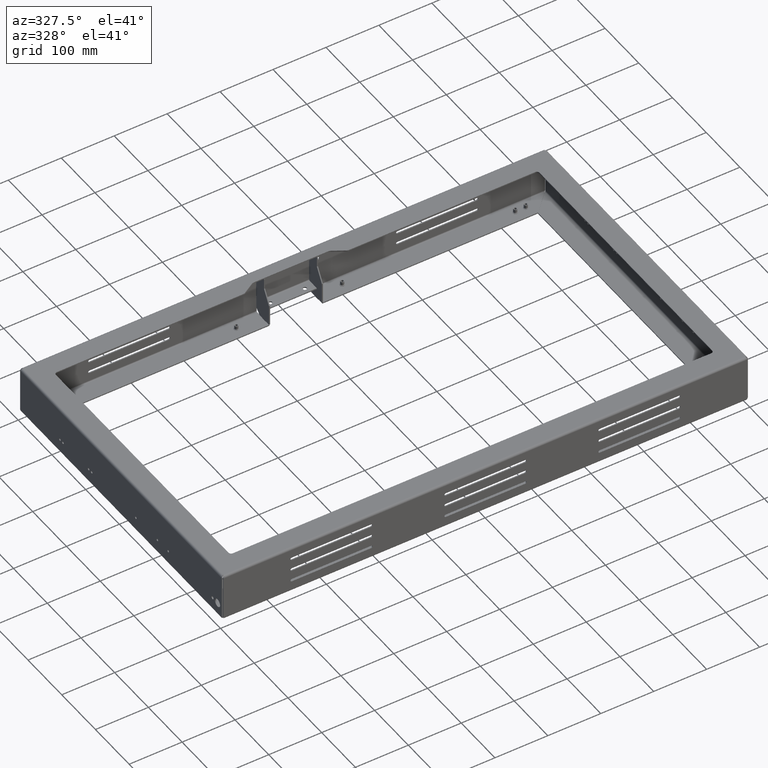
[diagram: clean part render]
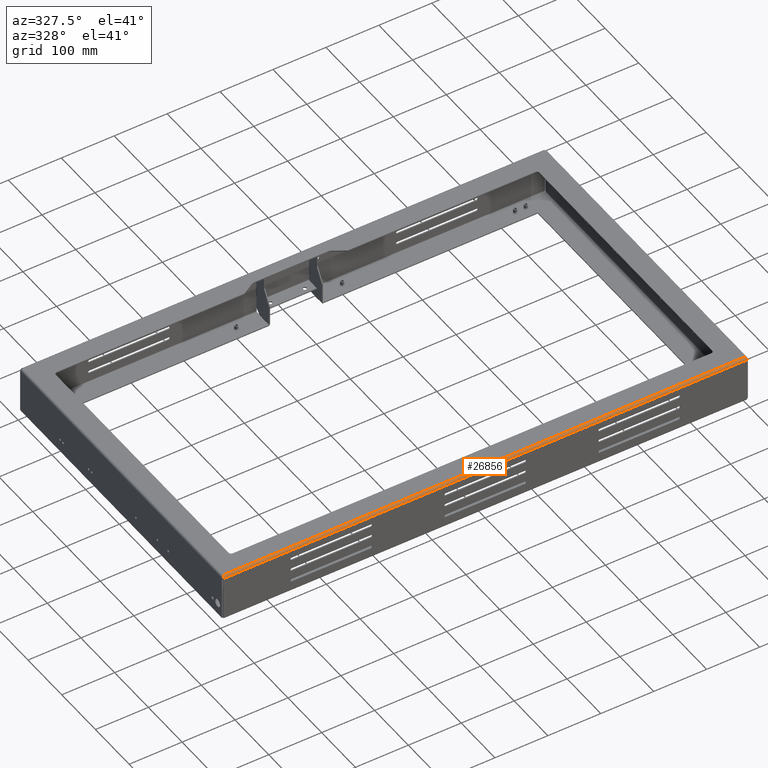
[diagram: same view with one face highlighted and labeled with its STEP entity id]
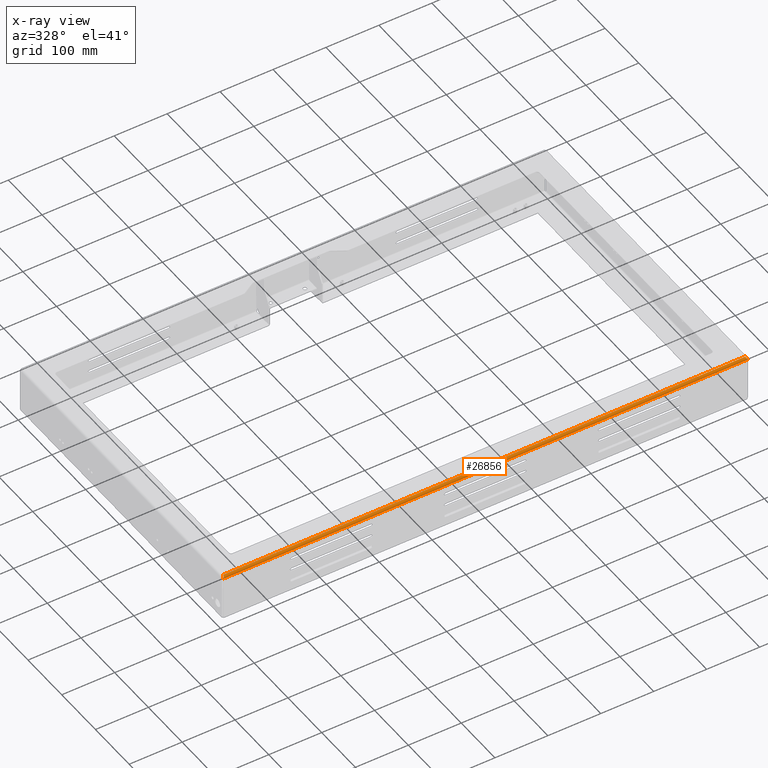
[diagram: x-ray of the same camera — body ghosted, the highlighted face saturated]
A machine part, auxiliary view. The second image highlights one B-rep face of the part: STEP entity #26856.
The next image is the same camera in x-ray: the body ghosted, the highlighted face saturated — about 0% of this face is hidden behind the body in this view.
In plain terms, the highlighted cylindrical surface (edge-blend (fillet) strip) has radius 4 mm, axis along (-1, 0, 0).
Its self-contained STEP definition (entity closure, byte-faithful):
#1115 = CARTESIAN_POINT ( 'NONE',  ( 494.3660906854802900, -300.5945629502260200, -2.225989450155605900 ) ) ;
#1271 = CARTESIAN_POINT ( 'NONE',  ( 493.0810958282489200, -297.2641076746487000, 1.088416161398094300E-014 ) ) ;
#1438 = CARTESIAN_POINT ( 'NONE',  ( 493.0000000000002300, -297.0000000000001100, -9.540979117872439000E-015 ) ) ;
#2223 = VECTOR ( 'NONE', #30024, 1000.000000000000000 ) ;
#2462 = CARTESIAN_POINT ( 'NONE',  ( -493.6445103622626800, -299.0085760043104400, -0.5309928944932697000 ) ) ;
#2723 = CARTESIAN_POINT ( 'NONE',  ( -494.9292893218816400, -301.0000000000000000, -4.000000000000051500 ) ) ;
#3326 = LINE ( 'NONE', #15771, #2223 ) ;
#3567 = EDGE_CURVE ( 'NONE', #39957, #37675, #14034, .T. ) ;
#4614 = CARTESIAN_POINT ( 'NONE',  ( 493.8840080356245600, -299.6426804497332300, -0.9859300766695997500 ) ) ;
#5157 = B_SPLINE_CURVE_WITH_KNOTS ( 'NONE', 3,
 ( #17979, #28556, #10208, #34660, #6693, #45099, #23671, #27170, #6246, #30732, #13280, #2462, #33929, #9450, #27029, #26886, #30412, #12963 ),
 .UNSPECIFIED., .F., .F.,
 ( 4, 2, 2, 2, 2, 2, 2, 2, 4 ),
 ( 4.076600168545496700E-017, 0.0008170730602800142400, 0.001634146120559987700, 0.002451219180839961200, 0.003268292241119934700, 0.004085365301399908200, 0.004902438361679881600, 0.005719511421959855100, 0.006536584482239828600 ),
 .UNSPECIFIED. ) ;
#6246 = CARTESIAN_POINT ( 'NONE',  ( -494.0452812862573600, -300.0140699233305100, -1.357319550266879100 ) ) ;
#6693 = CARTESIAN_POINT ( 'NONE',  ( -494.5276505241573100, -300.7960639522027000, -2.712033523026363000 ) ) ;
#7655 = CARTESIAN_POINT ( 'NONE',  ( -493.0000000000002300, -296.9999999999999400, 1.821459649775647400E-014 ) ) ;
#7799 = VECTOR ( 'NONE', #22307, 1000.000000000000000 ) ;
#8103 = CARTESIAN_POINT ( 'NONE',  ( 493.6425551720754500, -299.0030242007961800, -0.5278397667310785700 ) ) ;
#9450 = CARTESIAN_POINT ( 'NONE',  ( -493.4030620800788800, -298.2923186816872200, -0.2055423761677611100 ) ) ;
#10208 = CARTESIAN_POINT ( 'NONE',  ( -494.7683815482695300, -300.9740712762599100, -3.476006163316000200 ) ) ;
#11359 = ORIENTED_EDGE ( 'NONE', *, *, #45020, .F. ) ;
#11619 = CARTESIAN_POINT ( 'NONE',  ( 493.4016387977246700, -298.2879664769736800, -0.2039360477976258900 ) ) ;
#12963 = CARTESIAN_POINT ( 'NONE',  ( -493.0000000000002300, -296.9999999999999400, 1.821459649775647400E-014 ) ) ;
#13280 = CARTESIAN_POINT ( 'NONE',  ( -493.8050992721785500, -299.4431395913905500, -0.8220357459328608800 ) ) ;
#14034 = B_SPLINE_CURVE_WITH_KNOTS ( 'NONE', 3,
 ( #15121, #1271, #25683, #36082, #11619, #32581, #8103, #29080, #4614, #25519, #22010, #42981, #1115, #18494, #39422, #35919, #32432, #14976 ),
 .UNSPECIFIED., .F., .F.,
 ( 4, 2, 2, 2, 2, 2, 2, 2, 4 ),
 ( 5.608163953233864500E-017, 0.0008170730602799893100, 0.001634146120559922700, 0.002451219180839855800, 0.003268292241119789000, 0.004085365301399722500, 0.004902438361679656100, 0.005719511421959588800, 0.006536584482239522400 ),
 .UNSPECIFIED. ) ;
#14896 = LINE ( 'NONE', #43444, #7799 ) ;
#14976 = CARTESIAN_POINT ( 'NONE',  ( 494.9292893218816400, -301.0000000000001100, -4.000000000000024000 ) ) ;
#15121 = CARTESIAN_POINT ( 'NONE',  ( 493.0000000000002300, -297.0000000000001100, -9.540979117872439000E-015 ) ) ;
#15771 = CARTESIAN_POINT ( 'NONE',  ( -494.9292893218816400, -296.9999999999999400, 1.821459649775647400E-014 ) ) ;
#16908 = FACE_OUTER_BOUND ( 'NONE', #36428, .T. ) ;
#17591 = ORIENTED_EDGE ( 'NONE', *, *, #24789, .T. ) ;
#17775 = CARTESIAN_POINT ( 'NONE',  ( 494.9292893218816400, -301.0000000000001100, -4.000000000000024000 ) ) ;
#17979 = CARTESIAN_POINT ( 'NONE',  ( -494.9292893218816400, -301.0000000000000000, -4.000000000000051500 ) ) ;
#18494 = CARTESIAN_POINT ( 'NONE',  ( 494.5262272418031600, -300.7944576238323300, -2.707681318312734400 ) ) ;
#22010 = CARTESIAN_POINT ( 'NONE',  ( 494.1241900497034900, -300.1779642540672100, -1.556860408609638700 ) ) ;
#22307 = DIRECTION ( 'NONE',  ( 1.000000000000000000, -1.116924572057499000E-016, 5.584622860287507400E-017 ) ) ;
#23176 = ORIENTED_EDGE ( 'NONE', *, *, #3567, .F. ) ;
#23671 = CARTESIAN_POINT ( 'NONE',  ( -494.2867341498064800, -300.4721602332690500, -1.996975799204096400 ) ) ;
#23869 = DIRECTION ( 'NONE',  ( -1.000000000000000000, 0.0000000000000000000, 0.0000000000000000000 ) ) ;
#24789 = EDGE_CURVE ( 'NONE', #42035, #37675, #14896, .T. ) ;
#24806 = VERTEX_POINT ( 'NONE', #7655 ) ;
#25110 = CYLINDRICAL_SURFACE ( 'NONE', #29766, 4.000000000000058600 ) ;
#25519 = CARTESIAN_POINT ( 'NONE',  ( 494.0445927559265400, -300.0125879891461400, -1.355630307657621700 ) ) ;
#25683 = CARTESIAN_POINT ( 'NONE',  ( 493.1609077736123900, -297.5239938366844400, -0.02592872374016805300 ) ) ;
#26329 = CARTESIAN_POINT ( 'NONE',  ( -494.9292893218816400, -297.0000000000000600, -4.000000000000039100 ) ) ;
#26856 = ADVANCED_FACE ( 'NONE', ( #16908 ), #25110, .T. ) ;
#26886 = CARTESIAN_POINT ( 'NONE',  ( -493.1621345928688800, -297.5279917680300600, -0.02631173366330546600 ) ) ;
#27029 = CARTESIAN_POINT ( 'NONE',  ( -493.3234100461534100, -298.0430213074567400, -0.1294599475885966600 ) ) ;
#27170 = CARTESIAN_POINT ( 'NONE',  ( -494.1265981779469600, -300.1827084827716600, -1.563123033848094400 ) ) ;
#28556 = CARTESIAN_POINT ( 'NONE',  ( -494.8481934936328900, -301.0000000000001100, -3.735892325351440200 ) ) ;
#29080 = CARTESIAN_POINT ( 'NONE',  ( 493.8026911439349100, -299.4368769661521700, -0.8172915172283736800 ) ) ;
#29766 = AXIS2_PLACEMENT_3D ( 'NONE', #26329, #23869, #43807 ) ;
#29917 = ORIENTED_EDGE ( 'NONE', *, *, #32416, .F. ) ;
#30024 = DIRECTION ( 'NONE',  ( 1.000000000000000000, -0.0000000000000000000, -0.0000000000000000000 ) ) ;
#30412 = CARTESIAN_POINT ( 'NONE',  ( -493.0810958322939000, -297.2641076878215400, 2.554736072213694000E-014 ) ) ;
#30732 = CARTESIAN_POINT ( 'NONE',  ( -493.8846965659552700, -299.6443696923425400, -0.9874120108538220200 ) ) ;
#32416 = EDGE_CURVE ( 'NONE', #42035, #24806, #5157, .T. ) ;
#32432 = CARTESIAN_POINT ( 'NONE',  ( 494.8481934895880300, -301.0000000000001100, -3.735892312178506400 ) ) ;
#32581 = CARTESIAN_POINT ( 'NONE',  ( 493.5629050714388200, -298.7731977139155800, -0.4049020816696791700 ) ) ;
#33929 = CARTESIAN_POINT ( 'NONE',  ( -493.5631986364017500, -298.7740105498444300, -0.4054370497740255600 ) ) ;
#34660 = CARTESIAN_POINT ( 'NONE',  ( -494.6084700072308400, -300.8725891889080200, -2.965173916240946300 ) ) ;
#35919 = CARTESIAN_POINT ( 'NONE',  ( 494.7671547290128200, -300.9736882663369200, -3.472008231969800000 ) ) ;
#36082 = CARTESIAN_POINT ( 'NONE',  ( 493.3208193146510300, -298.0348260837591300, -0.1274108110918777400 ) ) ;
#36428 = EDGE_LOOP ( 'NONE', ( #11359, #29917, #17591, #23176 ) ) ;
#37675 = VERTEX_POINT ( 'NONE', #17775 ) ;
#39422 = CARTESIAN_POINT ( 'NONE',  ( 494.6058792757282800, -300.8705400524115700, -2.956978692543243500 ) ) ;
#39957 = VERTEX_POINT ( 'NONE', #1438 ) ;
#42035 = VERTEX_POINT ( 'NONE', #2723 ) ;
#42981 = CARTESIAN_POINT ( 'NONE',  ( 494.2847789596192500, -300.4690071055067600, -1.991423995689603200 ) ) ;
#43444 = CARTESIAN_POINT ( 'NONE',  ( 497.0000000000002300, -301.0000000000001100, -3.999999999999995600 ) ) ;
#43807 = DIRECTION ( 'NONE',  ( 0.0000000000000000000, -1.000000000000000000, 3.686287386450661400E-015 ) ) ;
#45020 = EDGE_CURVE ( 'NONE', #24806, #39957, #3326, .T. ) ;
#45099 = CARTESIAN_POINT ( 'NONE',  ( -494.3663842504433300, -300.5950979183307400, -2.226802286084416300 ) ) ;